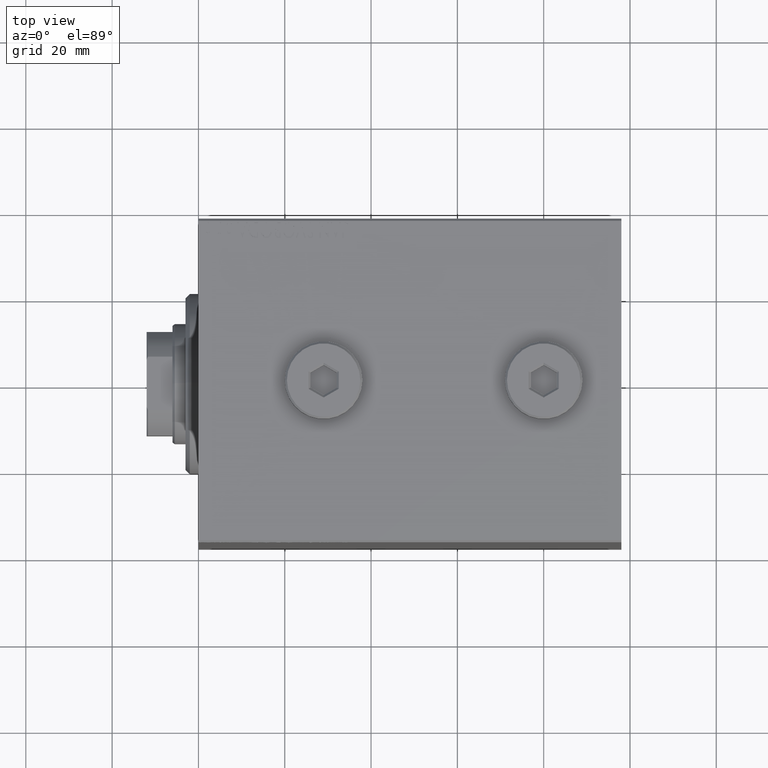
[diagram: clean part render]
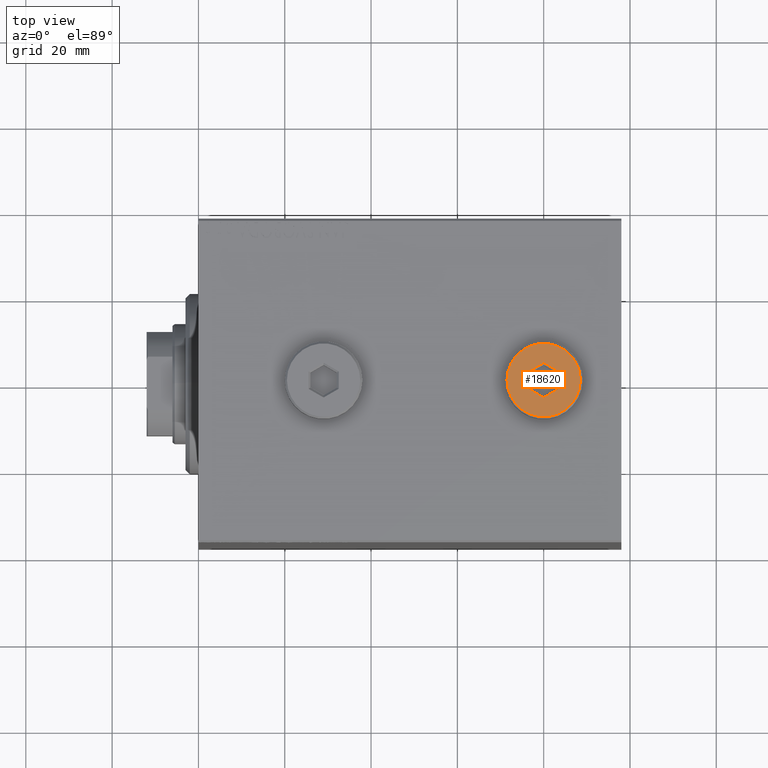
[diagram: same view with one face highlighted and labeled with its STEP entity id]
A machine part, top view. The second image highlights one B-rep face of the part: STEP entity #18620.
In plain terms, the highlighted planar face has unit normal (0, 0, 1).
Its self-contained STEP definition (entity closure, byte-faithful):
#517 = VECTOR ( 'NONE', #20207, 1000.000000000000000 ) ;
#987 = CARTESIAN_POINT ( 'NONE',  ( 0.2500000000000027756, -3.897114317029979347, 5.000000000000000000 ) ) ;
#1258 = VERTEX_POINT ( 'NONE', #16118 ) ;
#1448 = PLANE ( 'NONE',  #23901 ) ;
#1746 = CARTESIAN_POINT ( 'NONE',  ( -3.500000000000006661, 2.020725942163692945, 5.000000000000000000 ) ) ;
#1842 = LINE ( 'NONE', #22421, #20032 ) ;
#3324 = CARTESIAN_POINT ( 'NONE',  ( -3.500000000000006661, 1.732050807568878081, 5.000000000000000000 ) ) ;
#5692 = VECTOR ( 'NONE', #39638, 1000.000000000000000 ) ;
#6124 = LINE ( 'NONE', #9141, #517 ) ;
#6852 = CARTESIAN_POINT ( 'NONE',  ( 3.500000000000006661, -2.020725942163693833, 5.000000000000000000 ) ) ;
#7251 = LINE ( 'NONE', #987, #43616 ) ;
#8179 = ORIENTED_EDGE ( 'NONE', *, *, #17255, .T. ) ;
#9062 = DIRECTION ( 'NONE',  ( 0.000000000000000000, 0.000000000000000000, 1.000000000000000000 ) ) ;
#9141 = CARTESIAN_POINT ( 'NONE',  ( 3.250000000000003109, 2.165063509461103042, 5.000000000000000000 ) ) ;
#10057 = DIRECTION ( 'NONE',  ( 1.000000000000000000, 0.000000000000000000, 0.000000000000000000 ) ) ;
#10221 = ORIENTED_EDGE ( 'NONE', *, *, #11857, .T. ) ;
#10261 = DIRECTION ( 'NONE',  ( 0.000000000000000000, 1.000000000000000000, 0.000000000000000000 ) ) ;
#10782 = EDGE_CURVE ( 'NONE', #44258, #31254, #7251, .T. ) ;
#10930 = VERTEX_POINT ( 'NONE', #45081 ) ;
#11857 = EDGE_CURVE ( 'NONE', #31254, #42872, #1842, .T. ) ;
#12076 = DIRECTION ( 'NONE',  ( 1.000000000000000000, 0.000000000000000000, -0.000000000000000000 ) ) ;
#12300 = FACE_OUTER_BOUND ( 'NONE', #21006, .T. ) ;
#12741 = CARTESIAN_POINT ( 'NONE',  ( 0.000000000000000000, 0.000000000000000000, 5.000000000000000000 ) ) ;
#12808 = VECTOR ( 'NONE', #10261, 1000.000000000000000 ) ;
#12997 = ORIENTED_EDGE ( 'NONE', *, *, #27390, .T. ) ;
#13983 = DIRECTION ( 'NONE',  ( 0.000000000000000000, 0.000000000000000000, 1.000000000000000000 ) ) ;
#14437 = CIRCLE ( 'NONE', #43216, 8.500000000000010658 ) ;
#14999 = VECTOR ( 'NONE', #28093, 1000.000000000000000 ) ;
#16118 = CARTESIAN_POINT ( 'NONE',  ( 1.590596867181068292E-15, 4.041451884327386779, 5.000000000000000000 ) ) ;
#16486 = ORIENTED_EDGE ( 'NONE', *, *, #17242, .T. ) ;
#17242 = EDGE_CURVE ( 'NONE', #43442, #10930, #33457, .T. ) ;
#17255 = EDGE_CURVE ( 'NONE', #33324, #44258, #34106, .T. ) ;
#17383 = ORIENTED_EDGE ( 'NONE', *, *, #29637, .T. ) ;
#17414 = CARTESIAN_POINT ( 'NONE',  ( -8.500000000000010658, 0.000000000000000000, 5.000000000000000000 ) ) ;
#18378 = EDGE_CURVE ( 'NONE', #42872, #31825, #31766, .T. ) ;
#18421 = EDGE_LOOP ( 'NONE', ( #31505, #18428, #17383, #8179, #19546, #10221 ) ) ;
#18428 = ORIENTED_EDGE ( 'NONE', *, *, #31258, .T. ) ;
#18620 = ADVANCED_FACE ( 'NONE', ( #44407, #12300 ), #1448, .T. ) ;
#19411 = AXIS2_PLACEMENT_3D ( 'NONE', #20906, #13983, #10057 ) ;
#19546 = ORIENTED_EDGE ( 'NONE', *, *, #10782, .T. ) ;
#20032 = VECTOR ( 'NONE', #40215, 1000.000000000000114 ) ;
#20207 = DIRECTION ( 'NONE',  ( 0.8660254037844387076, -0.4999999999999998890, 0.000000000000000000 ) ) ;
#20906 = CARTESIAN_POINT ( 'NONE',  ( 0.000000000000000000, 0.000000000000000000, 5.000000000000000000 ) ) ;
#21006 = EDGE_LOOP ( 'NONE', ( #16486, #12997 ) ) ;
#22421 = CARTESIAN_POINT ( 'NONE',  ( -3.250000000000003109, -2.165063509461102598, 5.000000000000000000 ) ) ;
#23901 = AXIS2_PLACEMENT_3D ( 'NONE', #12741, #9062, #12076 ) ;
#24739 = CARTESIAN_POINT ( 'NONE',  ( -3.500000000000006661, -2.020725942163694278, 5.000000000000000000 ) ) ;
#25304 = LINE ( 'NONE', #32490, #5692 ) ;
#27390 = EDGE_CURVE ( 'NONE', #10930, #43442, #14437, .T. ) ;
#28093 = DIRECTION ( 'NONE',  ( 0.000000000000000000, -1.000000000000000000, 0.000000000000000000 ) ) ;
#29637 = EDGE_CURVE ( 'NONE', #1258, #33324, #6124, .T. ) ;
#31254 = VERTEX_POINT ( 'NONE', #43336 ) ;
#31258 = EDGE_CURVE ( 'NONE', #31825, #1258, #25304, .T. ) ;
#31505 = ORIENTED_EDGE ( 'NONE', *, *, #18378, .T. ) ;
#31766 = LINE ( 'NONE', #3324, #12808 ) ;
#31825 = VERTEX_POINT ( 'NONE', #1746 ) ;
#32490 = CARTESIAN_POINT ( 'NONE',  ( -0.2500000000000027756, 3.897114317029978459, 5.000000000000000000 ) ) ;
#33324 = VERTEX_POINT ( 'NONE', #43923 ) ;
#33457 = CIRCLE ( 'NONE', #19411, 8.500000000000010658 ) ;
#34106 = LINE ( 'NONE', #45172, #14999 ) ;
#39638 = DIRECTION ( 'NONE',  ( 0.8660254037844387076, 0.4999999999999998335, 0.000000000000000000 ) ) ;
#39819 = DIRECTION ( 'NONE',  ( -0.8660254037844387076, -0.4999999999999998890, 0.000000000000000000 ) ) ;
#40215 = DIRECTION ( 'NONE',  ( -0.8660254037844385966, 0.4999999999999999445, 0.000000000000000000 ) ) ;
#42872 = VERTEX_POINT ( 'NONE', #24739 ) ;
#43216 = AXIS2_PLACEMENT_3D ( 'NONE', #43485, #43930, #44158 ) ;
#43336 = CARTESIAN_POINT ( 'NONE',  ( -1.006139216460143630E-15, -4.041451884327387667, 5.000000000000000000 ) ) ;
#43442 = VERTEX_POINT ( 'NONE', #17414 ) ;
#43485 = CARTESIAN_POINT ( 'NONE',  ( 0.000000000000000000, 0.000000000000000000, 5.000000000000000000 ) ) ;
#43616 = VECTOR ( 'NONE', #39819, 1000.000000000000000 ) ;
#43923 = CARTESIAN_POINT ( 'NONE',  ( 3.500000000000006661, 2.020725942163694722, 5.000000000000000000 ) ) ;
#43930 = DIRECTION ( 'NONE',  ( 0.000000000000000000, 0.000000000000000000, 1.000000000000000000 ) ) ;
#44158 = DIRECTION ( 'NONE',  ( 1.000000000000000000, 0.000000000000000000, 0.000000000000000000 ) ) ;
#44258 = VERTEX_POINT ( 'NONE', #6852 ) ;
#44407 = FACE_BOUND ( 'NONE', #18421, .T. ) ;
#45081 = CARTESIAN_POINT ( 'NONE',  ( 8.500000000000010658, 1.071565949253934716E-15, 5.000000000000000000 ) ) ;
#45172 = CARTESIAN_POINT ( 'NONE',  ( 3.500000000000006661, -1.732050807568878303, 5.000000000000000000 ) ) ;